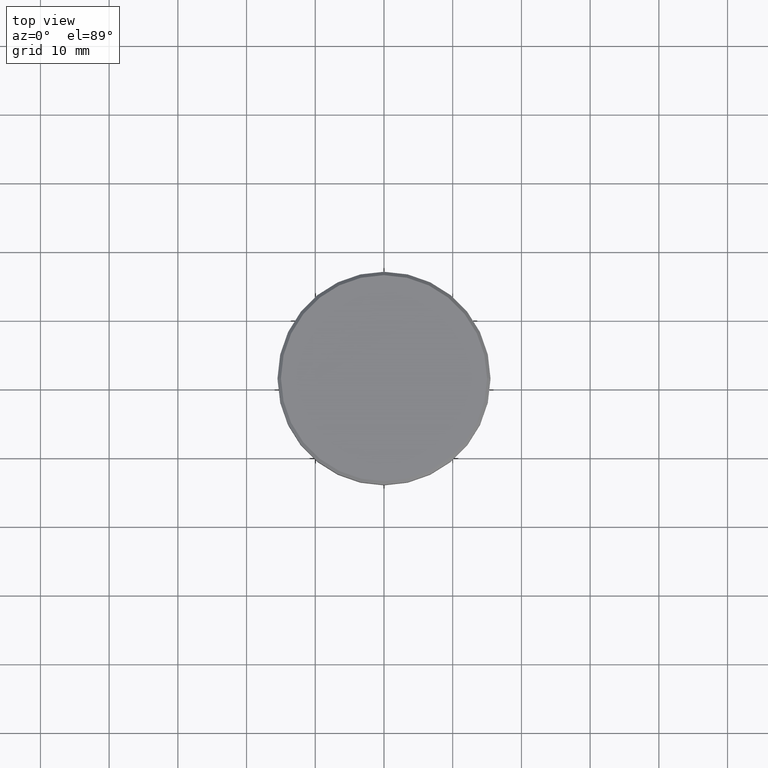
[diagram: clean part render]
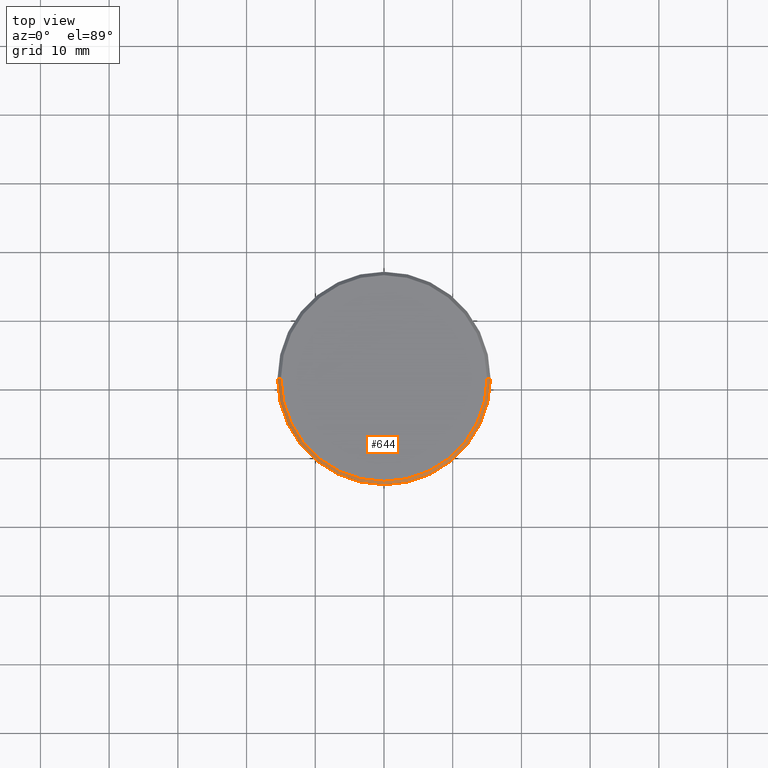
[diagram: same view with one face highlighted and labeled with its STEP entity id]
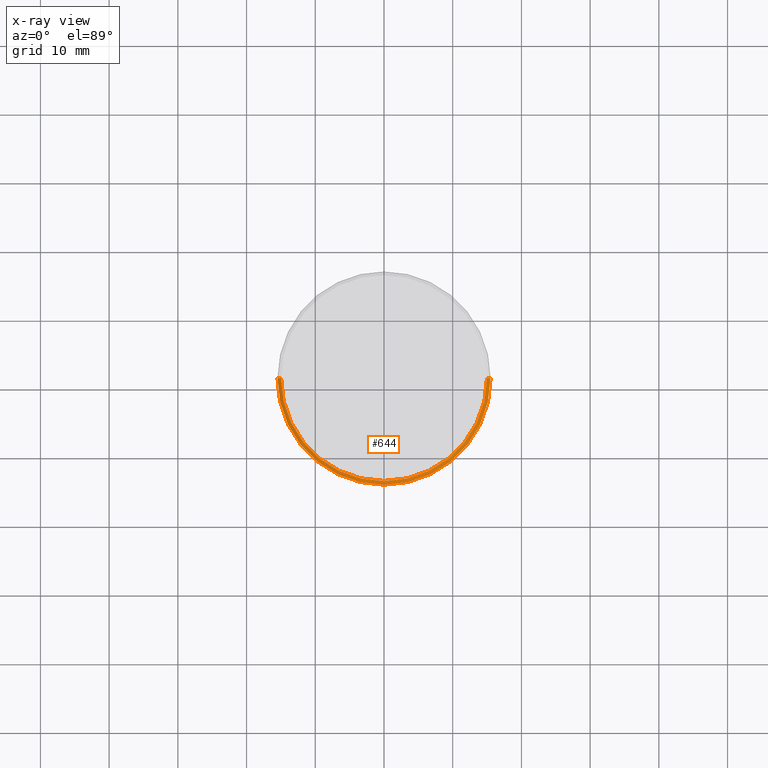
[diagram: x-ray of the same camera — body ghosted, the highlighted face saturated]
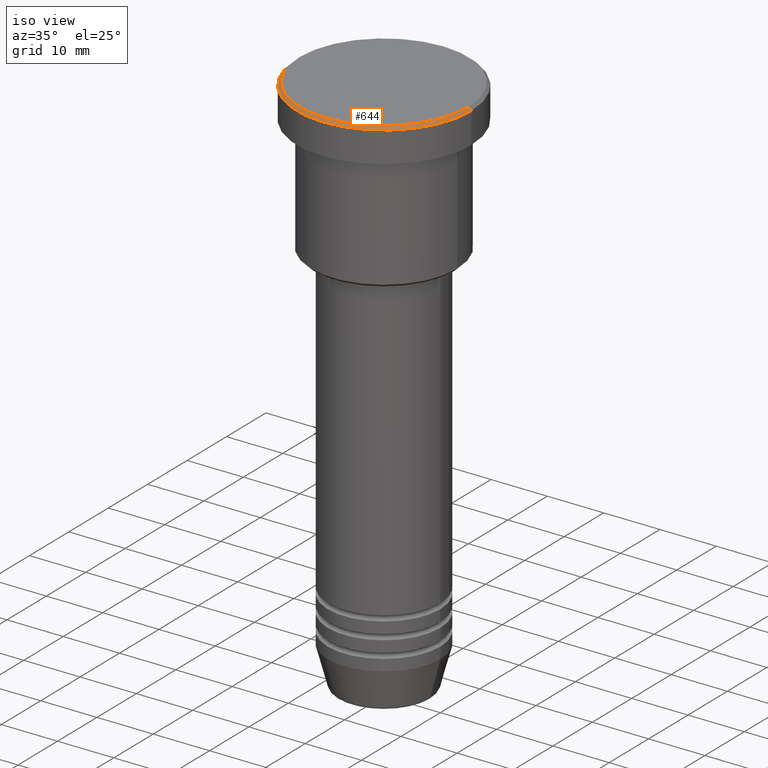
[diagram: same view with one face highlighted and labeled with its STEP entity id]
A machine part, top view. The second image highlights one B-rep face of the part: STEP entity #644.
The next image is the same camera in x-ray: the body ghosted, the highlighted face saturated — about 0% of this face is hidden behind the body in this view.
A second angle (iso view) of the same face is appended — the face is thin or edge-on in the first view.
In plain terms, the highlighted conical surface has half-angle 45 deg.
Its self-contained STEP definition (entity closure, byte-faithful):
#3 = CIRCLE ( 'NONE', #57, 15.00000000000001421 ) ;
#20 = VERTEX_POINT ( 'NONE', #781 ) ;
#32 = LINE ( 'NONE', #43, #463 ) ;
#43 = CARTESIAN_POINT ( 'NONE',  ( 15.00000000000001421, 1.836970198721031561E-15, 0.000000000000000000 ) ) ;
#57 = AXIS2_PLACEMENT_3D ( 'NONE', #509, #794, #1153 ) ;
#90 = ORIENTED_EDGE ( 'NONE', *, *, #773, .F. ) ;
#106 = CARTESIAN_POINT ( 'NONE',  ( -15.00000000000001421, 0.000000000000000000, 0.000000000000000000 ) ) ;
#107 = EDGE_CURVE ( 'NONE', #240, #479, #3, .T. ) ;
#240 = VERTEX_POINT ( 'NONE', #1107 ) ;
#246 = VERTEX_POINT ( 'NONE', #927 ) ;
#274 = AXIS2_PLACEMENT_3D ( 'NONE', #503, #1052, #572 ) ;
#385 = CONICAL_SURFACE ( 'NONE', #274, 15.00000000000001421, 0.7853981633974361776 ) ;
#392 = EDGE_CURVE ( 'NONE', #240, #246, #563, .T. ) ;
#442 = ORIENTED_EDGE ( 'NONE', *, *, #392, .T. ) ;
#463 = VECTOR ( 'NONE', #953, 1000.000000000000000 ) ;
#479 = VERTEX_POINT ( 'NONE', #655 ) ;
#500 = VECTOR ( 'NONE', #774, 1000.000000000000000 ) ;
#503 = CARTESIAN_POINT ( 'NONE',  ( 0.000000000000000000, 0.000000000000000000, 0.000000000000000000 ) ) ;
#509 = CARTESIAN_POINT ( 'NONE',  ( 0.000000000000000000, 0.000000000000000000, 0.000000000000000000 ) ) ;
#530 = CARTESIAN_POINT ( 'NONE',  ( 0.000000000000000000, 0.000000000000000000, -0.4999999999999987232 ) ) ;
#563 = LINE ( 'NONE', #106, #500 ) ;
#572 = DIRECTION ( 'NONE',  ( -1.000000000000000000, 0.000000000000000000, 0.000000000000000000 ) ) ;
#577 = ORIENTED_EDGE ( 'NONE', *, *, #1012, .F. ) ;
#604 = CIRCLE ( 'NONE', #1099, 15.50000000000000000 ) ;
#614 = DIRECTION ( 'NONE',  ( 1.000000000000000000, 0.000000000000000000, 0.000000000000000000 ) ) ;
#644 = ADVANCED_FACE ( 'NONE', ( #1033 ), #385, .T. ) ;
#655 = CARTESIAN_POINT ( 'NONE',  ( 15.00000000000001421, 1.867586368699714559E-15, 0.000000000000000000 ) ) ;
#725 = EDGE_LOOP ( 'NONE', ( #577, #838, #442, #90 ) ) ;
#773 = EDGE_CURVE ( 'NONE', #20, #246, #604, .T. ) ;
#774 = DIRECTION ( 'NONE',  ( -0.7071067811865389130, 0.000000000000000000, -0.7071067811865561215 ) ) ;
#781 = CARTESIAN_POINT ( 'NONE',  ( 15.50000000000000000, 0.000000000000000000, -0.4999999999999987232 ) ) ;
#794 = DIRECTION ( 'NONE',  ( -0.000000000000000000, -0.000000000000000000, 1.000000000000000000 ) ) ;
#838 = ORIENTED_EDGE ( 'NONE', *, *, #107, .F. ) ;
#927 = CARTESIAN_POINT ( 'NONE',  ( -15.50000000000000000, 1.898202538678397557E-15, -0.4999999999999987232 ) ) ;
#953 = DIRECTION ( 'NONE',  ( 0.7071067811865389130, 8.659560562354828088E-17, -0.7071067811865561215 ) ) ;
#1012 = EDGE_CURVE ( 'NONE', #479, #20, #32, .T. ) ;
#1033 = FACE_OUTER_BOUND ( 'NONE', #725, .T. ) ;
#1052 = DIRECTION ( 'NONE',  ( 0.000000000000000000, 0.000000000000000000, -1.000000000000000000 ) ) ;
#1099 = AXIS2_PLACEMENT_3D ( 'NONE', #530, #1167, #614 ) ;
#1107 = CARTESIAN_POINT ( 'NONE',  ( -15.00000000000001421, 0.000000000000000000, 0.000000000000000000 ) ) ;
#1153 = DIRECTION ( 'NONE',  ( 1.000000000000000000, 0.000000000000000000, 0.000000000000000000 ) ) ;
#1167 = DIRECTION ( 'NONE',  ( 0.000000000000000000, 0.000000000000000000, -1.000000000000000000 ) ) ;